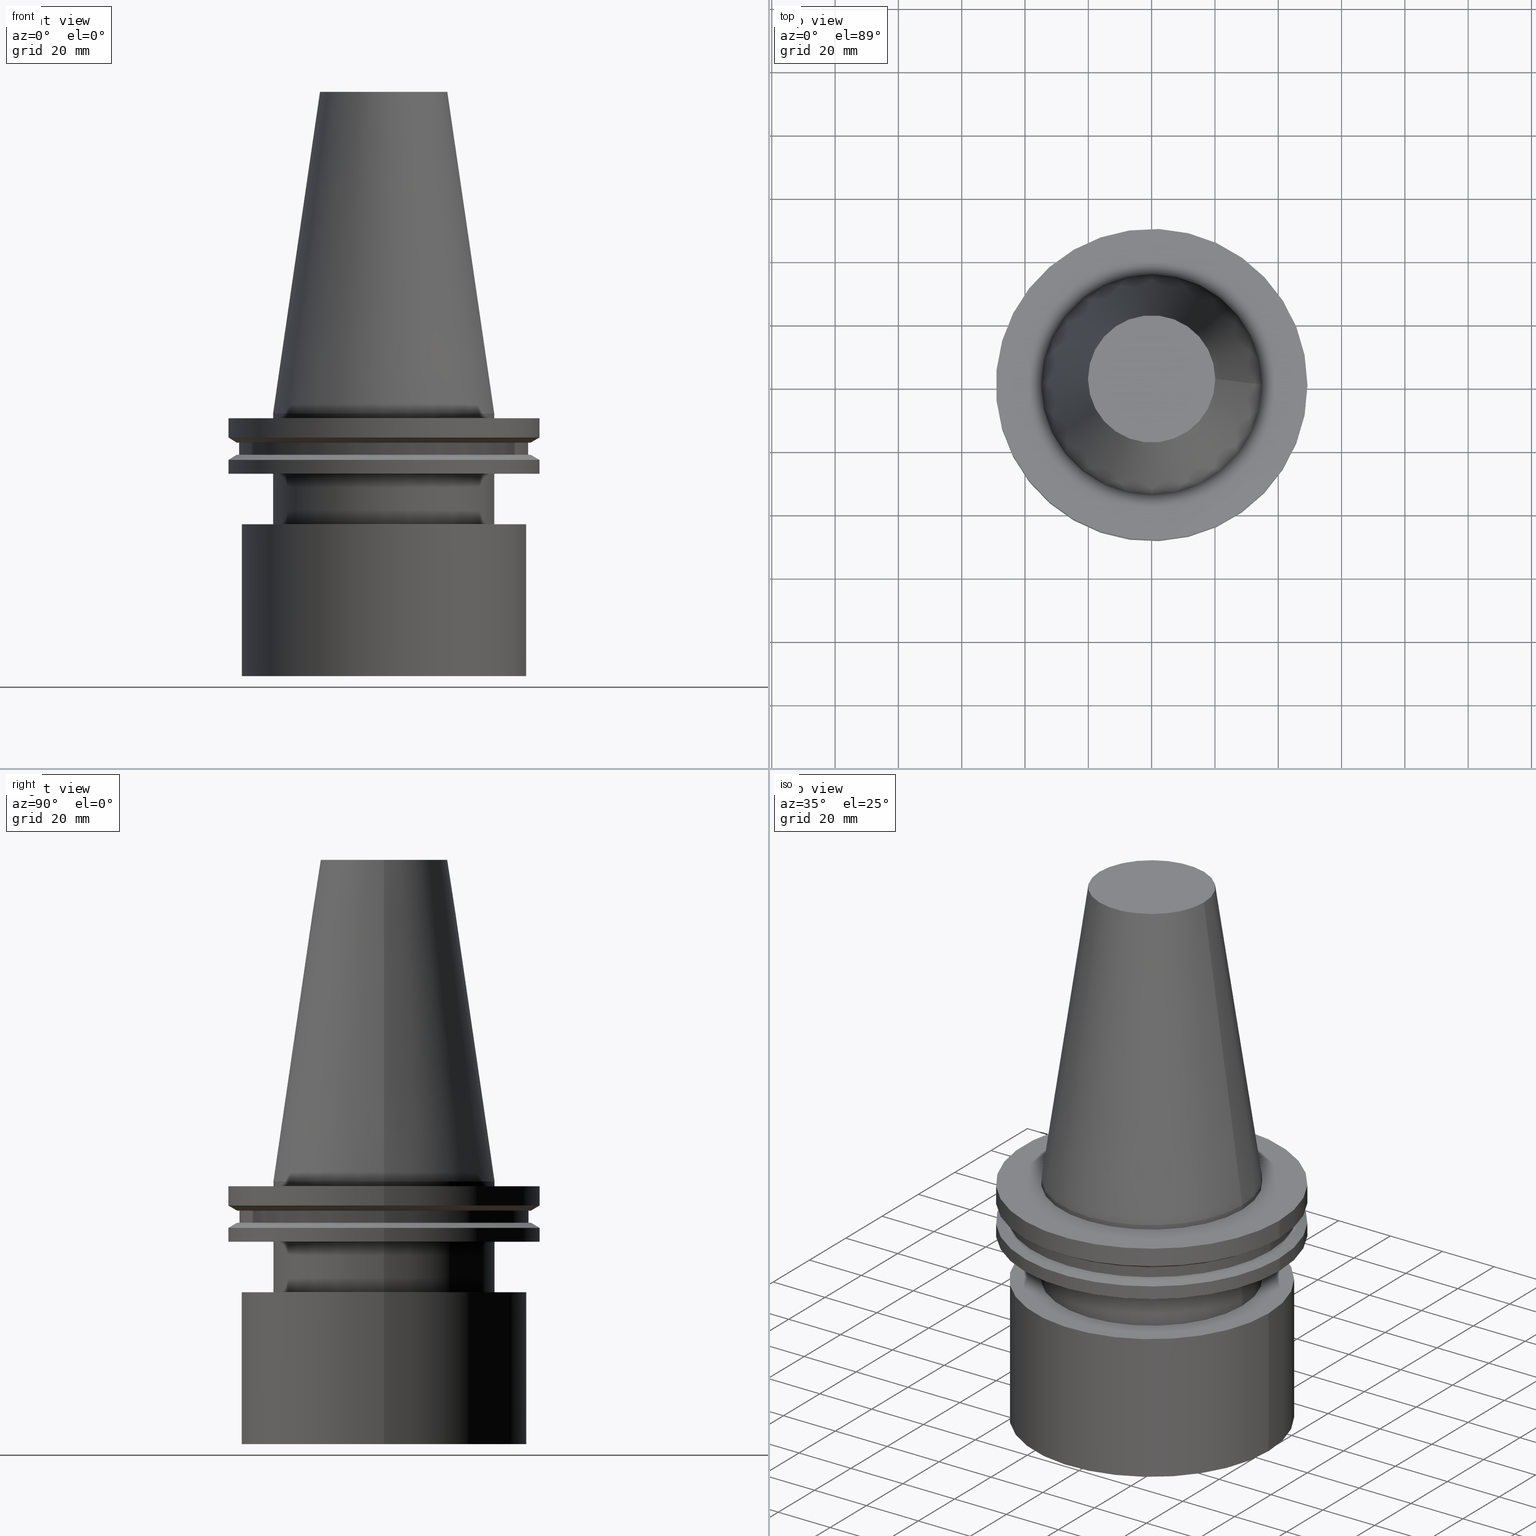
[diagram: canonical four-view strip — front | top / right | iso, engineering-drawing reading convention]
A machine part, canonical four-view strip (front | top / right | iso — engineering-drawing reading convention). The complete STEP part file that produces these views, byte-faithful:
ISO-10303-21;
HEADER;
FILE_DESCRIPTION (( 'STEP AP203' ),
    '1' );
FILE_NAME ('11.368.674N.stp',
    '2022-03-09T15:23:20',
    ( '' ),
    ( '' ),
    'SwSTEP 2.0',
    'SolidWorks 2021',
    '' );
FILE_SCHEMA (( 'CONFIG_CONTROL_DESIGN' ));
ENDSEC;

DATA;
#1 = DIRECTION ( 'NONE',  ( -0.000000000000000000, -0.000000000000000000, 1.000000000000000000 ) ) ;
#2 = ORIENTED_EDGE ( 'NONE', *, *, #364, .T. ) ;
#3 = CARTESIAN_POINT ( 'NONE',  ( 0.000000000000000000, 0.000000000000000000, 101.5999999999999943 ) ) ;
#4 = EDGE_LOOP ( 'NONE', ( #158 ) ) ;
#5 = AXIS2_PLACEMENT_3D ( 'NONE', #267, #389, #318 ) ;
#6 = FACE_BOUND ( 'NONE', #60, .T. ) ;
#7 = EDGE_LOOP ( 'NONE', ( #346 ) ) ;
#8 = DIRECTION ( 'NONE',  ( 1.000000000000000000, 0.000000000000000000, 0.000000000000000000 ) ) ;
#9 = ORIENTED_EDGE ( 'NONE', *, *, #265, .T. ) ;
#10 = ADVANCED_FACE ( 'NONE', ( #255 ), #124, .F. ) ;
#11 = FACE_OUTER_BOUND ( 'NONE', #244, .T. ) ;
#12 = EDGE_LOOP ( 'NONE', ( #374 ) ) ;
#13 = CARTESIAN_POINT ( 'NONE',  ( 0.000000000000000000, 0.000000000000000000, -19.04999999999999716 ) ) ;
#14 = AXIS2_PLACEMENT_3D ( 'NONE', #123, #216, #368 ) ;
#15 = DATE_TIME_ROLE ( 'creation_date' ) ;
#16 = CARTESIAN_POINT ( 'NONE',  ( 0.000000000000000000, 0.000000000000000000, -13.05499999999999794 ) ) ;
#17 = PERSON_AND_ORGANIZATION ( #253, #299 ) ;
#18 = DIRECTION ( 'NONE',  ( -0.000000000000000000, -0.000000000000000000, 1.000000000000000000 ) ) ;
#19 = CALENDAR_DATE ( 2022, 9, 3 ) ;
#20 = DIRECTION ( 'NONE',  ( 1.000000000000000000, 0.000000000000000000, 0.000000000000000000 ) ) ;
#21 = AXIS2_PLACEMENT_3D ( 'NONE', #312, #339, #281 ) ;
#22 = PERSON_AND_ORGANIZATION ( #253, #299 ) ;
#23 = CARTESIAN_POINT ( 'NONE',  ( 34.92499999999999005, 0.000000000000000000, -1.499999999999987566 ) ) ;
#24 = APPLICATION_PROTOCOL_DEFINITION ( 'international standard', 'config_control_design', 1994, #26 ) ;
#25 = CONICAL_SURFACE ( 'NONE', #45, 49.21499999999998920, 1.047197551196554333 ) ;
#26 = APPLICATION_CONTEXT ( 'configuration controlled 3d designs of mechanical parts and assemblies' ) ;
#27 = AXIS2_PLACEMENT_3D ( 'NONE', #259, #105, #329 ) ;
#28 = CARTESIAN_POINT ( 'NONE',  ( 49.21499999999998920, 0.000000000000000000, -19.04999999999999716 ) ) ;
#29 = APPROVAL ( #140, 'UNSPECIFIED' ) ;
#30 = EDGE_CURVE ( 'NONE', #104, #104, #394, .T. ) ;
#31 = ORIENTED_EDGE ( 'NONE', *, *, #265, .F. ) ;
#32 = AXIS2_PLACEMENT_3D ( 'NONE', #130, #287, #354 ) ;
#33 = PLANE ( 'NONE',  #300 ) ;
#34 = DIRECTION ( 'NONE',  ( -1.000000000000000000, 0.000000000000000000, -0.000000000000000000 ) ) ;
#35 = DIRECTION ( 'NONE',  ( -0.000000000000000000, -0.000000000000000000, 1.000000000000000000 ) ) ;
#36 = FACE_OUTER_BOUND ( 'NONE', #213, .T. ) ;
#37 = ADVANCED_FACE ( 'NONE', ( #80, #67 ), #157, .T. ) ;
#38 = FACE_BOUND ( 'NONE', #366, .T. ) ;
#39 = EDGE_CURVE ( 'NONE', #358, #358, #314, .T. ) ;
#40 = ORIENTED_EDGE ( 'NONE', *, *, #147, .F. ) ;
#41 = FACE_OUTER_BOUND ( 'NONE', #344, .T. ) ;
#42 = EDGE_LOOP ( 'NONE', ( #122 ) ) ;
#43 = DIRECTION ( 'NONE',  ( -0.000000000000000000, -0.000000000000000000, 1.000000000000000000 ) ) ;
#44 = DIRECTION ( 'NONE',  ( -0.000000000000000000, -0.000000000000000000, 1.000000000000000000 ) ) ;
#45 = AXIS2_PLACEMENT_3D ( 'NONE', #375, #154, #223 ) ;
#46 = DATE_AND_TIME ( #230, #206 ) ;
#47 = APPLICATION_CONTEXT ( 'configuration controlled 3d designs of mechanical parts and assemblies' ) ;
#48 = FACE_OUTER_BOUND ( 'NONE', #306, .T. ) ;
#49 = CARTESIAN_POINT ( 'NONE',  ( 0.000000000000000000, 0.000000000000000000, 0.000000000000000000 ) ) ;
#50 = CARTESIAN_POINT ( 'NONE',  ( 0.000000000000000000, 0.000000000000000000, -9.204999999999991189 ) ) ;
#51 = ORIENTED_EDGE ( 'NONE', *, *, #79, .F. ) ;
#52 =( LENGTH_UNIT ( ) NAMED_UNIT ( * ) SI_UNIT ( .MILLI., .METRE. ) );
#53 = DIRECTION ( 'NONE',  ( 0.000000000000000000, 0.000000000000000000, 1.000000000000000000 ) ) ;
#54 = VERTEX_POINT ( 'NONE', #28 ) ;
#55 = DIRECTION ( 'NONE',  ( 1.000000000000000000, 0.000000000000000000, 0.000000000000000000 ) ) ;
#56 = AXIS2_PLACEMENT_3D ( 'NONE', #212, #177, #8 ) ;
#57 = CARTESIAN_POINT ( 'NONE',  ( 0.000000000000000000, 0.000000000000000000, -19.04999999999999716 ) ) ;
#58 = EDGE_LOOP ( 'NONE', ( #126 ) ) ;
#59 = FACE_OUTER_BOUND ( 'NONE', #58, .T. ) ;
#60 = EDGE_LOOP ( 'NONE', ( #128 ) ) ;
#61 = CC_DESIGN_APPROVAL ( #308, ( #201 ) ) ;
#62 = FACE_OUTER_BOUND ( 'NONE', #92, .T. ) ;
#63 = EDGE_LOOP ( 'NONE', ( #378 ) ) ;
#64 = CARTESIAN_POINT ( 'NONE',  ( 49.21499999999998920, 0.000000000000000000, -14.65761014474876944 ) ) ;
#65 = APPROVAL_STATUS ( 'not_yet_approved' ) ;
#66 = CARTESIAN_POINT ( 'NONE',  ( 45.00000000000000000, 0.000000000000000000, -35.00000000000000000 ) ) ;
#67 = FACE_BOUND ( 'NONE', #273, .T. ) ;
#68 = CC_DESIGN_DATE_AND_TIME_ASSIGNMENT ( #111, #292, ( #70 ) ) ;
#69 = DATE_AND_TIME ( #353, #143 ) ;
#70 = SECURITY_CLASSIFICATION ( '', '', #199 ) ;
#71 = FACE_OUTER_BOUND ( 'NONE', #282, .T. ) ;
#72 = CIRCLE ( 'NONE', #356, 45.00000000000000000 ) ;
#73 = AXIS2_PLACEMENT_3D ( 'NONE', #167, #44, #283 ) ;
#74 = APPROVAL_DATE_TIME ( #46, #308 ) ;
#75 = DIRECTION ( 'NONE',  ( 1.000000000000000000, 0.000000000000000000, 0.000000000000000000 ) ) ;
#76 = COORDINATED_UNIVERSAL_TIME_OFFSET ( 6, 0, .BEHIND. ) ;
#77 = ADVANCED_FACE ( 'NONE', ( #224, #152 ), #116, .T. ) ;
#78 = FACE_OUTER_BOUND ( 'NONE', #148, .T. ) ;
#79 = EDGE_CURVE ( 'NONE', #189, #189, #360, .T. ) ;
#80 = FACE_OUTER_BOUND ( 'NONE', #179, .T. ) ;
#81 =( GEOMETRIC_REPRESENTATION_CONTEXT ( 3 ) GLOBAL_UNCERTAINTY_ASSIGNED_CONTEXT ( ( #321 ) ) GLOBAL_UNIT_ASSIGNED_CONTEXT ( ( #52, #266, #202 ) ) REPRESENTATION_CONTEXT ( 'NONE', 'WORKASPACE' ) );
#82 = PRODUCT_RELATED_PRODUCT_CATEGORY ( 'detail', '', ( #150 ) ) ;
#83 = VERTEX_POINT ( 'NONE', #335 ) ;
#84 = VERTEX_POINT ( 'NONE', #363 ) ;
#85 = AXIS2_PLACEMENT_3D ( 'NONE', #350, #101, #256 ) ;
#86 = AXIS2_PLACEMENT_3D ( 'NONE', #307, #35, #182 ) ;
#87 = EDGE_CURVE ( 'NONE', #83, #83, #365, .T. ) ;
#88 = DIRECTION ( 'NONE',  ( 1.000000000000000000, 0.000000000000000000, 0.000000000000000000 ) ) ;
#89 = CARTESIAN_POINT ( 'NONE',  ( 0.000000000000000000, 46.43919780457007818, -9.204999999999998295 ) ) ;
#90 = ORIENTED_EDGE ( 'NONE', *, *, #175, .T. ) ;
#91 = FACE_OUTER_BOUND ( 'NONE', #234, .T. ) ;
#92 = EDGE_LOOP ( 'NONE', ( #90 ) ) ;
#93 = CC_DESIGN_DATE_AND_TIME_ASSIGNMENT ( #193, #15, ( #201 ) ) ;
#94 = ADVANCED_FACE ( 'NONE', ( #38, #91 ), #395, .F. ) ;
#95 = DIRECTION ( 'NONE',  ( -0.000000000000000000, -0.000000000000000000, 1.000000000000000000 ) ) ;
#96 = DIRECTION ( 'NONE',  ( 1.000000000000000000, 0.000000000000000000, 0.000000000000000000 ) ) ;
#97 = DIRECTION ( 'NONE',  ( -0.000000000000000000, -0.000000000000000000, 1.000000000000000000 ) ) ;
#98 = ORIENTED_EDGE ( 'NONE', *, *, #379, .F. ) ;
#99 = AXIS2_PLACEMENT_3D ( 'NONE', #221, #386, #383 ) ;
#100 = AXIS2_PLACEMENT_3D ( 'NONE', #3, #95, #88 ) ;
#101 = DIRECTION ( 'NONE',  ( 0.000000000000000000, 0.000000000000000000, -1.000000000000000000 ) ) ;
#102 = ORIENTED_EDGE ( 'NONE', *, *, #263, .T. ) ;
#103 = COORDINATED_UNIVERSAL_TIME_OFFSET ( 6, 0, .BEHIND. ) ;
#104 = VERTEX_POINT ( 'NONE', #66 ) ;
#105 = DIRECTION ( 'NONE',  ( -0.000000000000000000, -0.000000000000000000, 1.000000000000000000 ) ) ;
#106 = CC_DESIGN_APPROVAL ( #29, ( #330 ) ) ;
#107 = DIRECTION ( 'NONE',  ( 0.000000000000000000, -0.000000000000000000, 1.000000000000000000 ) ) ;
#108 = CARTESIAN_POINT ( 'NONE',  ( 0.000000000000000000, 0.000000000000000000, -9.204999999999991189 ) ) ;
#109 = ADVANCED_FACE ( 'NONE', ( #41, #62 ), #210, .T. ) ;
#110 = CARTESIAN_POINT ( 'NONE',  ( 0.000000000000000000, 0.000000000000000000, -7.602389855251287187 ) ) ;
#111 = DATE_AND_TIME ( #225, #178 ) ;
#112 = CARTESIAN_POINT ( 'NONE',  ( 45.64500000000000313, 0.000000000000000000, -9.204999999999991189 ) ) ;
#113 = VERTEX_POINT ( 'NONE', #171 ) ;
#114 = CARTESIAN_POINT ( 'NONE',  ( 45.00000000000000000, 0.000000000000000000, -83.00000000000001421 ) ) ;
#115 = CC_DESIGN_SECURITY_CLASSIFICATION ( #70, ( #330 ) ) ;
#116 = CYLINDRICAL_SURFACE ( 'NONE', #100, 49.21499999999998920 ) ;
#117 = ORIENTED_EDGE ( 'NONE', *, *, #379, .T. ) ;
#118 = DIRECTION ( 'NONE',  ( 0.000000000000000000, -0.000000000000000000, 1.000000000000000000 ) ) ;
#119 = ORIENTED_EDGE ( 'NONE', *, *, #147, .T. ) ;
#120 = FACE_BOUND ( 'NONE', #280, .T. ) ;
#121 = ADVANCED_FACE ( 'NONE', ( #239, #6 ), #315, .F. ) ;
#122 = ORIENTED_EDGE ( 'NONE', *, *, #263, .F. ) ;
#123 = CARTESIAN_POINT ( 'NONE',  ( 0.000000000000000000, 49.21499999999999631, -1.499999999999992895 ) ) ;
#124 = PLANE ( 'NONE',  #296 ) ;
#125 = CARTESIAN_POINT ( 'NONE',  ( 0.000000000000000000, 0.000000000000000000, -13.05499999999999794 ) ) ;
#126 = ORIENTED_EDGE ( 'NONE', *, *, #236, .T. ) ;
#127 = DIRECTION ( 'NONE',  ( -0.000000000000000000, -0.000000000000000000, 1.000000000000000000 ) ) ;
#128 = ORIENTED_EDGE ( 'NONE', *, *, #277, .T. ) ;
#129 = CLOSED_SHELL ( 'NONE', ( #337, #10, #250, #194, #77, #214, #94, #271, #121, #37, #295, #149, #109, #338, #203, #304 ) ) ;
#130 = CARTESIAN_POINT ( 'NONE',  ( 0.000000000000000000, 0.000000000000000000, -1.499999999999987566 ) ) ;
#131 = PERSON_AND_ORGANIZATION_ROLE ( 'design_supplier' ) ;
#132 = CARTESIAN_POINT ( 'NONE',  ( 0.000000000000000000, 0.000000000000000000, 101.5999999999999943 ) ) ;
#133 = DIRECTION ( 'NONE',  ( -0.000000000000000000, -0.000000000000000000, 1.000000000000000000 ) ) ;
#134 = PERSON_AND_ORGANIZATION ( #253, #299 ) ;
#135 = DIRECTION ( 'NONE',  ( -0.000000000000000000, -0.000000000000000000, 1.000000000000000000 ) ) ;
#136 = EDGE_CURVE ( 'NONE', #84, #84, #334, .T. ) ;
#137 = APPROVAL_DATE_TIME ( #69, #393 ) ;
#138 = CC_DESIGN_APPROVAL ( #393, ( #70 ) ) ;
#139 = FACE_BOUND ( 'NONE', #160, .T. ) ;
#140 = APPROVAL_STATUS ( 'not_yet_approved' ) ;
#141 = VERTEX_POINT ( 'NONE', #114 ) ;
#142 = MECHANICAL_CONTEXT ( 'NONE', #26, 'mechanical' ) ;
#143 = LOCAL_TIME ( 9, 23, 20.00000000000000000, #190 ) ;
#144 = AXIS2_PLACEMENT_3D ( 'NONE', #89, #251, #377 ) ;
#145 = AXIS2_PLACEMENT_3D ( 'NONE', #50, #382, #293 ) ;
#146 = PERSON_AND_ORGANIZATION ( #253, #299 ) ;
#147 = EDGE_CURVE ( 'NONE', #388, #388, #331, .T. ) ;
#148 = EDGE_LOOP ( 'NONE', ( #9 ) ) ;
#149 = ADVANCED_FACE ( 'NONE', ( #120, #347 ), #159, .F. ) ;
#150 = PRODUCT ( '11.368.674N', '11.368.674N', '', ( #142 ) ) ;
#151 = CARTESIAN_POINT ( 'NONE',  ( 0.000000000000000000, 49.21499999999998920, -19.04999999999999716 ) ) ;
#152 = FACE_OUTER_BOUND ( 'NONE', #4, .T. ) ;
#153 = EDGE_LOOP ( 'NONE', ( #155 ) ) ;
#154 = DIRECTION ( 'NONE',  ( 0.000000000000000000, 0.000000000000000000, -1.000000000000000000 ) ) ;
#155 = ORIENTED_EDGE ( 'NONE', *, *, #30, .F. ) ;
#156 = CIRCLE ( 'NONE', #359, 34.92499999999999005 ) ;
#157 = CONICAL_SURFACE ( 'NONE', #270, 46.43919780457007818, 1.047197551196575205 ) ;
#158 = ORIENTED_EDGE ( 'NONE', *, *, #215, .T. ) ;
#159 = PLANE ( 'NONE',  #14 ) ;
#160 = EDGE_LOOP ( 'NONE', ( #185 ) ) ;
#161 = CARTESIAN_POINT ( 'NONE',  ( 0.000000000000000000, 0.000000000000000000, 101.5999999999999943 ) ) ;
#162 = COORDINATED_UNIVERSAL_TIME_OFFSET ( 6, 0, .BEHIND. ) ;
#163 = AXIS2_PLACEMENT_3D ( 'NONE', #249, #376, #96 ) ;
#164 = CYLINDRICAL_SURFACE ( 'NONE', #370, 49.21499999999999631 ) ;
#165 = PERSON_AND_ORGANIZATION_ROLE ( 'creator' ) ;
#166 = CC_DESIGN_PERSON_AND_ORGANIZATION_ASSIGNMENT ( #258, #165, ( #201 ) ) ;
#167 = CARTESIAN_POINT ( 'NONE',  ( 0.000000000000000000, 0.000000000000000000, -9.204999999999991189 ) ) ;
#168 = APPROVAL_ROLE ( '' ) ;
#169 = DIRECTION ( 'NONE',  ( 1.000000000000000000, 0.000000000000000000, 0.000000000000000000 ) ) ;
#170 = CONICAL_SURFACE ( 'NONE', #99, 34.92499999999999005, 0.1448138465474119452 ) ;
#171 = CARTESIAN_POINT ( 'NONE',  ( 46.43919780457007818, 0.000000000000000000, -9.204999999999991189 ) ) ;
#172 = CARTESIAN_POINT ( 'NONE',  ( 34.92499999999999716, 0.000000000000000000, -19.04999999999999716 ) ) ;
#173 = DIRECTION ( 'NONE',  ( 1.000000000000000000, 0.000000000000000000, 0.000000000000000000 ) ) ;
#174 = AXIS2_PLACEMENT_3D ( 'NONE', #279, #272, #186 ) ;
#175 = EDGE_CURVE ( 'NONE', #204, #204, #261, .T. ) ;
#176 = EDGE_LOOP ( 'NONE', ( #217 ) ) ;
#177 = DIRECTION ( 'NONE',  ( -0.000000000000000000, -0.000000000000000000, 1.000000000000000000 ) ) ;
#178 = LOCAL_TIME ( 9, 23, 20.00000000000000000, #328 ) ;
#179 = EDGE_LOOP ( 'NONE', ( #252 ) ) ;
#180 = CYLINDRICAL_SURFACE ( 'NONE', #86, 45.00000000000000000 ) ;
#181 = EDGE_LOOP ( 'NONE', ( #188 ) ) ;
#182 = DIRECTION ( 'NONE',  ( 1.000000000000000000, 0.000000000000000000, 0.000000000000000000 ) ) ;
#183 = ORIENTED_EDGE ( 'NONE', *, *, #79, .T. ) ;
#184 = DIRECTION ( 'NONE',  ( -0.000000000000000000, -0.000000000000000000, 1.000000000000000000 ) ) ;
#185 = ORIENTED_EDGE ( 'NONE', *, *, #136, .F. ) ;
#186 = DIRECTION ( 'NONE',  ( 1.000000000000000000, 0.000000000000000000, 0.000000000000000000 ) ) ;
#187 = CC_DESIGN_PERSON_AND_ORGANIZATION_ASSIGNMENT ( #146, #269, ( #150 ) ) ;
#188 = ORIENTED_EDGE ( 'NONE', *, *, #277, .F. ) ;
#189 = VERTEX_POINT ( 'NONE', #237 ) ;
#190 = COORDINATED_UNIVERSAL_TIME_OFFSET ( 6, 0, .BEHIND. ) ;
#191 = CYLINDRICAL_SURFACE ( 'NONE', #27, 34.92499999999999716 ) ;
#192 = LOCAL_TIME ( 9, 23, 20.00000000000000000, #162 ) ;
#193 = DATE_AND_TIME ( #381, #311 ) ;
#194 = ADVANCED_FACE ( 'NONE', ( #247, #345 ), #33, .F. ) ;
#195 = CIRCLE ( 'NONE', #73, 45.64500000000000313 ) ;
#196 = PLANE ( 'NONE',  #85 ) ;
#197 = CC_DESIGN_PERSON_AND_ORGANIZATION_ASSIGNMENT ( #228, #131, ( #330 ) ) ;
#198 = CARTESIAN_POINT ( 'NONE',  ( 0.000000000000000000, 45.00000000000000000, -83.00000000000001421 ) ) ;
#199 = SECURITY_CLASSIFICATION_LEVEL ( 'unclassified' ) ;
#200 = FACE_OUTER_BOUND ( 'NONE', #211, .T. ) ;
#201 = PRODUCT_DEFINITION ( 'UNKNOWN', '', #330, #248 ) ;
#202 =( NAMED_UNIT ( * ) SI_UNIT ( $, .STERADIAN. ) SOLID_ANGLE_UNIT ( ) );
#203 = ADVANCED_FACE ( 'NONE', ( #343, #59 ), #180, .T. ) ;
#204 = VERTEX_POINT ( 'NONE', #23 ) ;
#205 = CARTESIAN_POINT ( 'NONE',  ( 0.000000000000000000, 0.000000000000000000, -1.499999999999987566 ) ) ;
#206 = LOCAL_TIME ( 9, 23, 20.00000000000000000, #103 ) ;
#207 = DIRECTION ( 'NONE',  ( 1.000000000000000000, 0.000000000000000000, 0.000000000000000000 ) ) ;
#208 = CIRCLE ( 'NONE', #245, 49.21499999999998920 ) ;
#209 = CC_DESIGN_PERSON_AND_ORGANIZATION_ASSIGNMENT ( #326, #387, ( #70 ) ) ;
#210 = CYLINDRICAL_SURFACE ( 'NONE', #56, 34.92499999999999005 ) ;
#211 = EDGE_LOOP ( 'NONE', ( #40 ) ) ;
#212 = CARTESIAN_POINT ( 'NONE',  ( 0.000000000000000000, 0.000000000000000000, 101.5999999999999943 ) ) ;
#213 = EDGE_LOOP ( 'NONE', ( #348 ) ) ;
#214 = ADVANCED_FACE ( 'NONE', ( #309, #36 ), #25, .T. ) ;
#215 = EDGE_CURVE ( 'NONE', #54, #54, #208, .T. ) ;
#216 = DIRECTION ( 'NONE',  ( 0.000000000000000000, 0.000000000000000000, -1.000000000000000000 ) ) ;
#217 = ORIENTED_EDGE ( 'NONE', *, *, #87, .T. ) ;
#218 = APPROVAL_PERSON_ORGANIZATION ( #17, #393, #168 ) ;
#219 = DIRECTION ( 'NONE',  ( -0.000000000000000000, -0.000000000000000000, 1.000000000000000000 ) ) ;
#220 = DATE_AND_TIME ( #19, #192 ) ;
#221 = CARTESIAN_POINT ( 'NONE',  ( 0.000000000000000000, 0.000000000000000000, 0.000000000000000000 ) ) ;
#222 = APPROVAL_DATE_TIME ( #220, #29 ) ;
#223 = DIRECTION ( 'NONE',  ( -1.000000000000000000, 0.000000000000000000, 0.000000000000000000 ) ) ;
#224 = FACE_OUTER_BOUND ( 'NONE', #313, .T. ) ;
#225 = CALENDAR_DATE ( 2022, 9, 3 ) ;
#226 = AXIS2_PLACEMENT_3D ( 'NONE', #372, #305, #243 ) ;
#227 = DIRECTION ( 'NONE',  ( 1.000000000000000000, 0.000000000000000000, 0.000000000000000000 ) ) ;
#228 = PERSON_AND_ORGANIZATION ( #253, #299 ) ;
#229 = DIRECTION ( 'NONE',  ( -0.000000000000000000, -0.000000000000000000, 1.000000000000000000 ) ) ;
#230 = CALENDAR_DATE ( 2022, 9, 3 ) ;
#231 = VERTEX_POINT ( 'NONE', #112 ) ;
#232 = CIRCLE ( 'NONE', #391, 49.21500000000000341 ) ;
#233 = VERTEX_POINT ( 'NONE', #332 ) ;
#234 = EDGE_LOOP ( 'NONE', ( #183 ) ) ;
#235 = CARTESIAN_POINT ( 'NONE',  ( 49.21500000000000341, 0.000000000000000000, -7.602389855251287187 ) ) ;
#236 = EDGE_CURVE ( 'NONE', #141, #141, #72, .T. ) ;
#237 = CARTESIAN_POINT ( 'NONE',  ( 46.43919780457007818, 0.000000000000000000, -13.05499999999999794 ) ) ;
#238 = EDGE_LOOP ( 'NONE', ( #367 ) ) ;
#239 = FACE_OUTER_BOUND ( 'NONE', #42, .T. ) ;
#240 = EDGE_LOOP ( 'NONE', ( #369 ) ) ;
#241 = DIRECTION ( 'NONE',  ( 1.000000000000000000, 0.000000000000000000, 0.000000000000000000 ) ) ;
#242 = EDGE_LOOP ( 'NONE', ( #51 ) ) ;
#243 = DIRECTION ( 'NONE',  ( 1.000000000000000000, 0.000000000000000000, 0.000000000000000000 ) ) ;
#244 = EDGE_LOOP ( 'NONE', ( #2 ) ) ;
#245 = AXIS2_PLACEMENT_3D ( 'NONE', #13, #317, #289 ) ;
#246 = AXIS2_PLACEMENT_3D ( 'NONE', #132, #135, #75 ) ;
#247 = FACE_OUTER_BOUND ( 'NONE', #12, .T. ) ;
#248 = DESIGN_CONTEXT ( 'detailed design', #47, 'design' ) ;
#249 = CARTESIAN_POINT ( 'NONE',  ( 0.000000000000000000, 0.000000000000000000, -35.00000000000000000 ) ) ;
#250 = ADVANCED_FACE ( 'NONE', ( #200, #352 ), #191, .T. ) ;
#251 = DIRECTION ( 'NONE',  ( 0.000000000000000000, -0.000000000000000000, 1.000000000000000000 ) ) ;
#252 = ORIENTED_EDGE ( 'NONE', *, *, #364, .F. ) ;
#253 = PERSON ( 'UNSPECIFIED', 'UNSPECIFIED', 'UNSPECIFIED', ('UNSPECIFIED'), ('UNSPECIFIED'), ('UNSPECIFIED') ) ;
#254 = PLANE ( 'NONE',  #342 ) ;
#255 = FACE_OUTER_BOUND ( 'NONE', #7, .T. ) ;
#256 = DIRECTION ( 'NONE',  ( -1.000000000000000000, 0.000000000000000000, -0.000000000000000000 ) ) ;
#257 = DIRECTION ( 'NONE',  ( 1.000000000000000000, 0.000000000000000000, 0.000000000000000000 ) ) ;
#258 = PERSON_AND_ORGANIZATION ( #253, #299 ) ;
#259 = CARTESIAN_POINT ( 'NONE',  ( 0.000000000000000000, 0.000000000000000000, 101.5999999999999943 ) ) ;
#260 = SHAPE_DEFINITION_REPRESENTATION ( #291, #274 ) ;
#261 = CIRCLE ( 'NONE', #286, 34.92499999999999005 ) ;
#262 = FACE_OUTER_BOUND ( 'NONE', #63, .T. ) ;
#263 = EDGE_CURVE ( 'NONE', #113, #113, #323, .T. ) ;
#264 = APPROVAL_STATUS ( 'not_yet_approved' ) ;
#265 = EDGE_CURVE ( 'NONE', #233, #233, #373, .T. ) ;
#266 =( NAMED_UNIT ( * ) PLANE_ANGLE_UNIT ( ) SI_UNIT ( $, .RADIAN. ) );
#267 = CARTESIAN_POINT ( 'NONE',  ( 0.000000000000000000, 0.000000000000000000, -14.65761014474876944 ) ) ;
#268 = AXIS2_PLACEMENT_3D ( 'NONE', #16, #18, #327 ) ;
#269 = PERSON_AND_ORGANIZATION_ROLE ( 'design_owner' ) ;
#270 = AXIS2_PLACEMENT_3D ( 'NONE', #108, #133, #290 ) ;
#271 = ADVANCED_FACE ( 'NONE', ( #320, #78 ), #384, .T. ) ;
#272 = DIRECTION ( 'NONE',  ( -0.000000000000000000, -0.000000000000000000, 1.000000000000000000 ) ) ;
#273 = EDGE_LOOP ( 'NONE', ( #102 ) ) ;
#274 = ADVANCED_BREP_SHAPE_REPRESENTATION ( '11.368.674N', ( #303, #322 ), #81 ) ;
#275 = DIRECTION ( 'NONE',  ( 1.000000000000000000, 0.000000000000000000, 0.000000000000000000 ) ) ;
#276 = ORIENTED_EDGE ( 'NONE', *, *, #175, .F. ) ;
#277 = EDGE_CURVE ( 'NONE', #231, #231, #195, .T. ) ;
#278 = APPROVAL_PERSON_ORGANIZATION ( #22, #29, #319 ) ;
#279 = CARTESIAN_POINT ( 'NONE',  ( 0.000000000000000000, 0.000000000000000000, 101.5999999999999801 ) ) ;
#280 = EDGE_LOOP ( 'NONE', ( #276 ) ) ;
#281 = DIRECTION ( 'NONE',  ( -1.000000000000000000, 0.000000000000000000, -0.000000000000000000 ) ) ;
#282 = EDGE_LOOP ( 'NONE', ( #349 ) ) ;
#283 = DIRECTION ( 'NONE',  ( 1.000000000000000000, 0.000000000000000000, 0.000000000000000000 ) ) ;
#284 = EDGE_LOOP ( 'NONE', ( #119 ) ) ;
#285 = FACE_OUTER_BOUND ( 'NONE', #340, .T. ) ;
#286 = AXIS2_PLACEMENT_3D ( 'NONE', #205, #97, #55 ) ;
#287 = DIRECTION ( 'NONE',  ( -0.000000000000000000, -0.000000000000000000, 1.000000000000000000 ) ) ;
#288 = PERSON_AND_ORGANIZATION ( #253, #299 ) ;
#289 = DIRECTION ( 'NONE',  ( 1.000000000000000000, 0.000000000000000000, 0.000000000000000000 ) ) ;
#290 = DIRECTION ( 'NONE',  ( 1.000000000000000000, 0.000000000000000000, 0.000000000000000000 ) ) ;
#291 = PRODUCT_DEFINITION_SHAPE ( 'NONE', 'NONE',  #201 ) ;
#292 = DATE_TIME_ROLE ( 'classification_date' ) ;
#293 = DIRECTION ( 'NONE',  ( 1.000000000000000000, 0.000000000000000000, 0.000000000000000000 ) ) ;
#294 = EDGE_CURVE ( 'NONE', #390, #390, #302, .T. ) ;
#295 = ADVANCED_FACE ( 'NONE', ( #48, #11 ), #164, .T. ) ;
#296 = AXIS2_PLACEMENT_3D ( 'NONE', #316, #310, #34 ) ;
#297 = VERTEX_POINT ( 'NONE', #301 ) ;
#298 = VERTEX_POINT ( 'NONE', #235 ) ;
#299 = ORGANIZATION ( 'UNSPECIFIED', 'UNSPECIFIED', '' ) ;
#300 = AXIS2_PLACEMENT_3D ( 'NONE', #151, #118, #207 ) ;
#301 = CARTESIAN_POINT ( 'NONE',  ( 34.92499999999999005, 0.000000000000000000, 0.000000000000000000 ) ) ;
#302 = CIRCLE ( 'NONE', #32, 49.21499999999999631 ) ;
#303 = MANIFOLD_SOLID_BREP ( 'CKB', #129 ) ;
#304 = ADVANCED_FACE ( 'NONE', ( #262 ), #254, .F. ) ;
#305 = DIRECTION ( 'NONE',  ( -0.000000000000000000, -0.000000000000000000, 1.000000000000000000 ) ) ;
#306 = EDGE_LOOP ( 'NONE', ( #362 ) ) ;
#307 = CARTESIAN_POINT ( 'NONE',  ( 0.000000000000000000, 0.000000000000000000, 0.000000000000000000 ) ) ;
#308 = APPROVAL ( #264, 'UNSPECIFIED' ) ;
#309 = FACE_BOUND ( 'NONE', #242, .T. ) ;
#310 = DIRECTION ( 'NONE',  ( 0.000000000000000000, 0.000000000000000000, -1.000000000000000000 ) ) ;
#311 = LOCAL_TIME ( 9, 23, 20.00000000000000000, #76 ) ;
#312 = CARTESIAN_POINT ( 'NONE',  ( 0.000000000000000000, 45.64500000000000313, -13.05499999999999794 ) ) ;
#313 = EDGE_LOOP ( 'NONE', ( #336 ) ) ;
#314 = CIRCLE ( 'NONE', #5, 49.21499999999998920 ) ;
#315 = PLANE ( 'NONE',  #144 ) ;
#316 = CARTESIAN_POINT ( 'NONE',  ( 0.000000000000000000, 20.10819343178871321, 101.5999999999999943 ) ) ;
#317 = DIRECTION ( 'NONE',  ( -0.000000000000000000, -0.000000000000000000, 1.000000000000000000 ) ) ;
#318 = DIRECTION ( 'NONE',  ( 1.000000000000000000, 0.000000000000000000, 0.000000000000000000 ) ) ;
#319 = APPROVAL_ROLE ( '' ) ;
#320 = FACE_OUTER_BOUND ( 'NONE', #181, .T. ) ;
#321 = UNCERTAINTY_MEASURE_WITH_UNIT (LENGTH_MEASURE( 1.000000000000000082E-05 ), #52, 'distance_accuracy_value', 'NONE');
#322 = AXIS2_PLACEMENT_3D ( 'NONE', #333, #53, #173 ) ;
#323 = CIRCLE ( 'NONE', #145, 46.43919780457007818 ) ;
#324 = APPROVAL_ROLE ( '' ) ;
#325 = DIRECTION ( 'NONE',  ( 1.000000000000000000, 0.000000000000000000, 0.000000000000000000 ) ) ;
#326 = PERSON_AND_ORGANIZATION ( #253, #299 ) ;
#327 = DIRECTION ( 'NONE',  ( 1.000000000000000000, 0.000000000000000000, 0.000000000000000000 ) ) ;
#328 = COORDINATED_UNIVERSAL_TIME_OFFSET ( 6, 0, .BEHIND. ) ;
#329 = DIRECTION ( 'NONE',  ( 1.000000000000000000, 0.000000000000000000, 0.000000000000000000 ) ) ;
#330 = PRODUCT_DEFINITION_FORMATION_WITH_SPECIFIED_SOURCE ( 'ANY', '', #150, .NOT_KNOWN. ) ;
#331 = CIRCLE ( 'NONE', #385, 34.92499999999999716 ) ;
#332 = CARTESIAN_POINT ( 'NONE',  ( 45.64500000000000313, 0.000000000000000000, -13.05499999999999794 ) ) ;
#333 = CARTESIAN_POINT ( 'NONE',  ( 0.000000000000000000, 0.000000000000000000, 0.000000000000000000 ) ) ;
#334 = CIRCLE ( 'NONE', #174, 20.10819343178871321 ) ;
#335 = CARTESIAN_POINT ( 'NONE',  ( 34.92499999999999716, 0.000000000000000000, -35.00000000000000000 ) ) ;
#336 = ORIENTED_EDGE ( 'NONE', *, *, #39, .F. ) ;
#337 = ADVANCED_FACE ( 'NONE', ( #139, #285 ), #170, .T. ) ;
#338 = ADVANCED_FACE ( 'NONE', ( #380, #71 ), #196, .F. ) ;
#339 = DIRECTION ( 'NONE',  ( 0.000000000000000000, 0.000000000000000000, -1.000000000000000000 ) ) ;
#340 = EDGE_LOOP ( 'NONE', ( #117 ) ) ;
#341 = APPROVAL_PERSON_ORGANIZATION ( #134, #308, #324 ) ;
#342 = AXIS2_PLACEMENT_3D ( 'NONE', #198, #107, #20 ) ;
#343 = FACE_OUTER_BOUND ( 'NONE', #153, .T. ) ;
#344 = EDGE_LOOP ( 'NONE', ( #98 ) ) ;
#345 = FACE_BOUND ( 'NONE', #284, .T. ) ;
#346 = ORIENTED_EDGE ( 'NONE', *, *, #136, .T. ) ;
#347 = FACE_OUTER_BOUND ( 'NONE', #240, .T. ) ;
#348 = ORIENTED_EDGE ( 'NONE', *, *, #39, .T. ) ;
#349 = ORIENTED_EDGE ( 'NONE', *, *, #30, .T. ) ;
#350 = CARTESIAN_POINT ( 'NONE',  ( 0.000000000000000000, 0.000000000000000000, -35.00000000000000000 ) ) ;
#351 = PERSON_AND_ORGANIZATION_ROLE ( 'creator' ) ;
#352 = FACE_OUTER_BOUND ( 'NONE', #176, .T. ) ;
#353 = CALENDAR_DATE ( 2022, 9, 3 ) ;
#354 = DIRECTION ( 'NONE',  ( 1.000000000000000000, 0.000000000000000000, 0.000000000000000000 ) ) ;
#355 = CC_DESIGN_PERSON_AND_ORGANIZATION_ASSIGNMENT ( #288, #351, ( #330 ) ) ;
#356 = AXIS2_PLACEMENT_3D ( 'NONE', #357, #43, #227 ) ;
#357 = CARTESIAN_POINT ( 'NONE',  ( 0.000000000000000000, 0.000000000000000000, -83.00000000000001421 ) ) ;
#358 = VERTEX_POINT ( 'NONE', #64 ) ;
#359 = AXIS2_PLACEMENT_3D ( 'NONE', #49, #229, #169 ) ;
#360 = CIRCLE ( 'NONE', #371, 46.43919780457007818 ) ;
#361 = CARTESIAN_POINT ( 'NONE',  ( 49.21499999999999631, 0.000000000000000000, -1.499999999999987566 ) ) ;
#362 = ORIENTED_EDGE ( 'NONE', *, *, #294, .F. ) ;
#363 = CARTESIAN_POINT ( 'NONE',  ( 20.10819343178871321, 0.000000000000000000, 101.5999999999999801 ) ) ;
#364 = EDGE_CURVE ( 'NONE', #298, #298, #232, .T. ) ;
#365 = CIRCLE ( 'NONE', #226, 34.92499999999999716 ) ;
#366 = EDGE_LOOP ( 'NONE', ( #31 ) ) ;
#367 = ORIENTED_EDGE ( 'NONE', *, *, #87, .F. ) ;
#368 = DIRECTION ( 'NONE',  ( -1.000000000000000000, 0.000000000000000000, -0.000000000000000000 ) ) ;
#369 = ORIENTED_EDGE ( 'NONE', *, *, #294, .T. ) ;
#370 = AXIS2_PLACEMENT_3D ( 'NONE', #161, #127, #257 ) ;
#371 = AXIS2_PLACEMENT_3D ( 'NONE', #125, #184, #275 ) ;
#372 = CARTESIAN_POINT ( 'NONE',  ( 0.000000000000000000, 0.000000000000000000, -35.00000000000000000 ) ) ;
#373 = CIRCLE ( 'NONE', #268, 45.64500000000000313 ) ;
#374 = ORIENTED_EDGE ( 'NONE', *, *, #215, .F. ) ;
#375 = CARTESIAN_POINT ( 'NONE',  ( 0.000000000000000000, 0.000000000000000000, -14.65761014474876944 ) ) ;
#376 = DIRECTION ( 'NONE',  ( -0.000000000000000000, -0.000000000000000000, 1.000000000000000000 ) ) ;
#377 = DIRECTION ( 'NONE',  ( 1.000000000000000000, 0.000000000000000000, 0.000000000000000000 ) ) ;
#378 = ORIENTED_EDGE ( 'NONE', *, *, #236, .F. ) ;
#379 = EDGE_CURVE ( 'NONE', #297, #297, #156, .T. ) ;
#380 = FACE_BOUND ( 'NONE', #238, .T. ) ;
#381 = CALENDAR_DATE ( 2022, 9, 3 ) ;
#382 = DIRECTION ( 'NONE',  ( -0.000000000000000000, -0.000000000000000000, 1.000000000000000000 ) ) ;
#383 = DIRECTION ( 'NONE',  ( -1.000000000000000000, 0.000000000000000000, 0.000000000000000000 ) ) ;
#384 = CYLINDRICAL_SURFACE ( 'NONE', #246, 45.64500000000000313 ) ;
#385 = AXIS2_PLACEMENT_3D ( 'NONE', #57, #1, #241 ) ;
#386 = DIRECTION ( 'NONE',  ( 0.000000000000000000, 0.000000000000000000, -1.000000000000000000 ) ) ;
#387 = PERSON_AND_ORGANIZATION_ROLE ( 'classification_officer' ) ;
#388 = VERTEX_POINT ( 'NONE', #172 ) ;
#389 = DIRECTION ( 'NONE',  ( -0.000000000000000000, -0.000000000000000000, 1.000000000000000000 ) ) ;
#390 = VERTEX_POINT ( 'NONE', #361 ) ;
#391 = AXIS2_PLACEMENT_3D ( 'NONE', #110, #219, #325 ) ;
#392 = APPLICATION_PROTOCOL_DEFINITION ( 'international standard', 'config_control_design', 1994, #47 ) ;
#393 = APPROVAL ( #65, 'UNSPECIFIED' ) ;
#394 = CIRCLE ( 'NONE', #163, 45.00000000000000000 ) ;
#395 = PLANE ( 'NONE',  #21 ) ;
ENDSEC;
END-ISO-10303-21;
